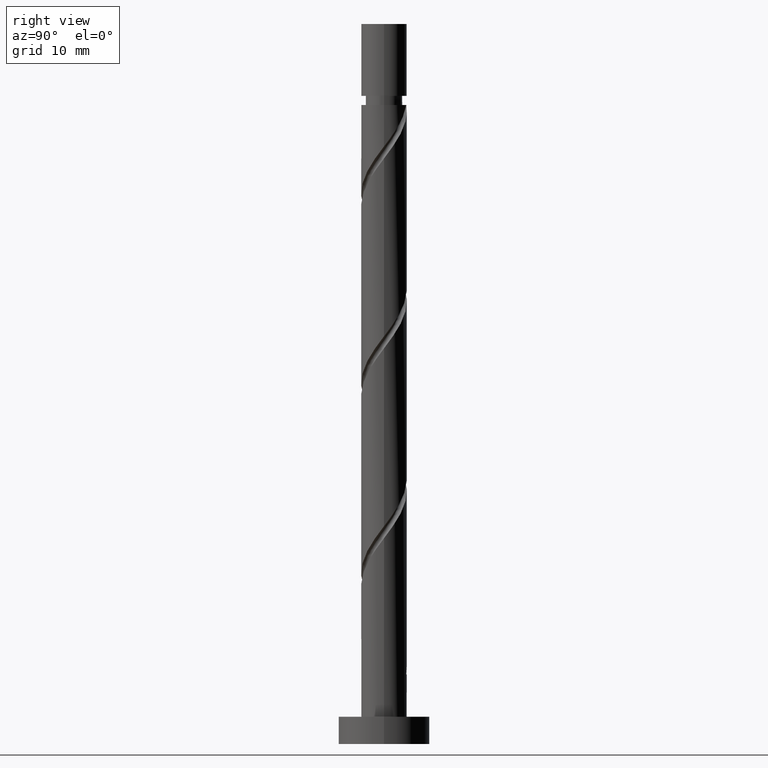
[diagram: clean part render]
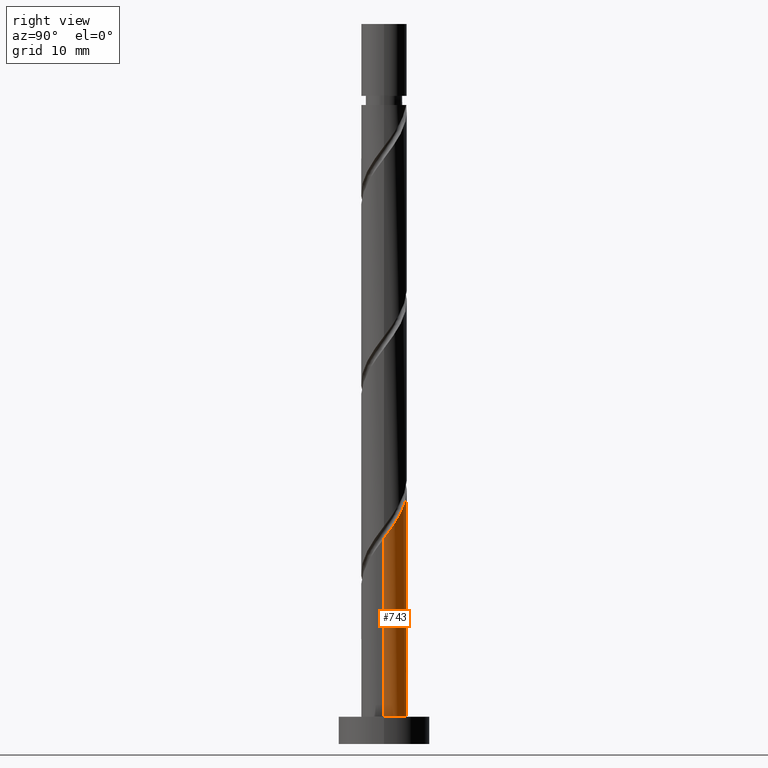
[diagram: same view with one face highlighted and labeled with its STEP entity id]
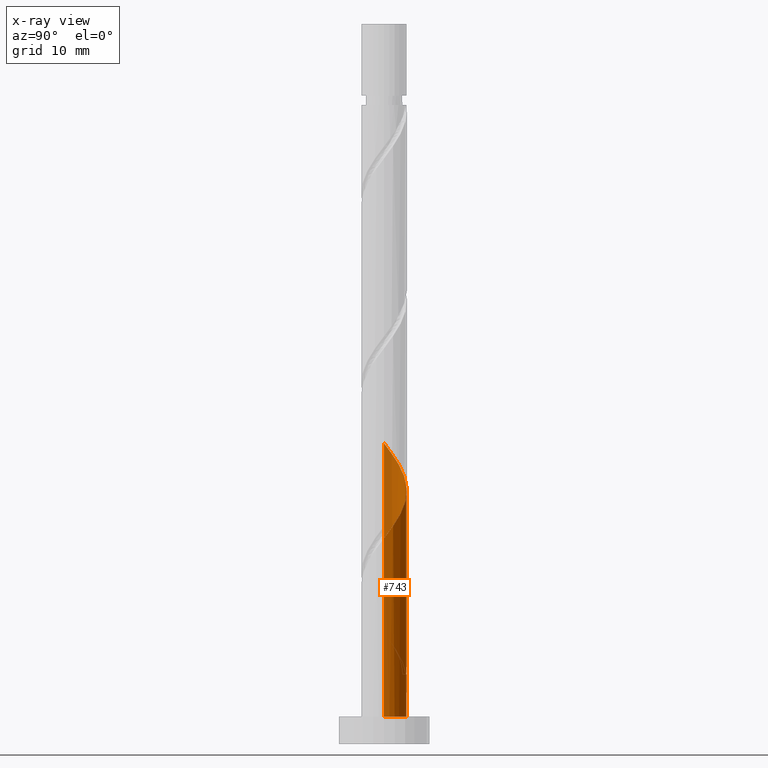
[diagram: x-ray of the same camera — body ghosted, the highlighted face saturated]
A machine part, right view. The second image highlights one B-rep face of the part: STEP entity #743.
The next image is the same camera in x-ray: the body ghosted, the highlighted face saturated — about 0% of this face is hidden behind the body in this view.
In plain terms, the highlighted cylindrical surface (edge-blend (fillet) strip) has radius 2.5 mm, axis along (-0, -0, -1).
Its self-contained STEP definition (entity closure, byte-faithful):
#25 = DIRECTION ( 'NONE',  ( 0.000000000000000000, 0.000000000000000000, 1.000000000000000000 ) ) ;
#53 = CARTESIAN_POINT ( 'NONE',  ( 0.1094518397581949187, 2.528795264178037350, 8.135411662879050709 ) ) ;
#71 = CARTESIAN_POINT ( 'NONE',  ( -1.689672165344844101, 1.842554741020973719, 10.73957832954572567 ) ) ;
#75 = CARTESIAN_POINT ( 'NONE',  ( 2.500000000000003997, 6.746896252442628833E-16, 22.57477588807545743 ) ) ;
#82 = CARTESIAN_POINT ( 'NONE',  ( 0.2839469933725912165, 2.483822478550889556, 27.40624499621238641 ) ) ;
#91 = CARTESIAN_POINT ( 'NONE',  ( -2.274511107092401119, 1.037592995212147429, 31.57291166287905071 ) ) ;
#102 = DIRECTION ( 'NONE',  ( 0.000000000000000000, -0.000000000000000000, -1.000000000000000000 ) ) ;
#112 = CARTESIAN_POINT ( 'NONE',  ( -2.274511107092401119, 1.037592995212147429, 10.73957832954572567 ) ) ;
#118 = CARTESIAN_POINT ( 'NONE',  ( -2.483822478550889112, 0.2839469933725906614, 32.61457832954572211 ) ) ;
#158 = CARTESIAN_POINT ( 'NONE',  ( 0.000000000000000000, 0.000000000000000000, 3.000000000000000000 ) ) ;
#180 = ORIENTED_EDGE ( 'NONE', *, *, #1096, .F. ) ;
#214 = CARTESIAN_POINT ( 'NONE',  ( 1.397840163920919254, 2.110172521261066247, 25.84374499621238641 ) ) ;
#224 = DIRECTION ( 'NONE',  ( -0.000000000000000000, -0.000000000000000000, -1.000000000000000000 ) ) ;
#233 = CARTESIAN_POINT ( 'NONE',  ( -2.438849692923736878, 0.6773458265033759362, 11.26041166287905426 ) ) ;
#240 = CARTESIAN_POINT ( 'NONE',  ( 1.689672165344847432, 1.842554741020975273, 25.32291166287905426 ) ) ;
#246 = CARTESIAN_POINT ( 'NONE',  ( 2.500000000000004441, 0.2512594538148026913, 22.90908046348329918 ) ) ;
#266 = CARTESIAN_POINT ( 'NONE',  ( -2.499999999999999556, 1.664234408935859595E-15, 13.48771410434931894 ) ) ;
#292 = EDGE_CURVE ( 'NONE', #1431, #1016, #310, .T. ) ;
#305 = CARTESIAN_POINT ( 'NONE',  ( 0.4974937185533095385, 2.450000000000000622, 7.614578329545722113 ) ) ;
#310 = LINE ( 'NONE', #943, #901 ) ;
#338 = CARTESIAN_POINT ( 'NONE',  ( 1.981504166768775610, 1.574936960780884743, 24.80207832954572567 ) ) ;
#349 = CARTESIAN_POINT ( 'NONE',  ( -1.574936960780884743, 1.981504166768775166, 9.177078329545725666 ) ) ;
#377 = DIRECTION ( 'NONE',  ( -0.000000000000000000, -0.000000000000000000, -1.000000000000000000 ) ) ;
#378 = FACE_OUTER_BOUND ( 'NONE', #1321, .T. ) ;
#396 = CARTESIAN_POINT ( 'NONE',  ( -2.500000000000003553, -1.004537886474791373E-15, 12.15810922140879491 ) ) ;
#420 = AXIS2_PLACEMENT_3D ( 'NONE', #1212, #224, #966 ) ;
#438 = CARTESIAN_POINT ( 'NONE',  ( -0.4974937185533086503, 2.450000000000004619, 7.614578329545721225 ) ) ;
#453 = VERTEX_POINT ( 'NONE', #1061 ) ;
#467 = CARTESIAN_POINT ( 'NONE',  ( 0.6773458265033764913, 2.438849692923736878, 26.88541166287905071 ) ) ;
#468 = CYLINDRICAL_SURFACE ( 'NONE', #420, 2.500000000000000000 ) ;
#470 = ORIENTED_EDGE ( 'NONE', *, *, #1026, .F. ) ;
#484 = CARTESIAN_POINT ( 'NONE',  ( -2.438849692923736878, 0.6773458265033759362, 32.09374499621240062 ) ) ;
#485 = CARTESIAN_POINT ( 'NONE',  ( -0.4974937185533086503, 2.450000000000004619, 7.614578329545721225 ) ) ;
#526 = CARTESIAN_POINT ( 'NONE',  ( -1.397840163920916368, 2.110172521261063583, 10.21874499621238463 ) ) ;
#537 =( BOUNDED_CURVE ( )  B_SPLINE_CURVE ( 2, ( #889, #1486, #800, #678, #767, #1015, #71, #526, #1126, #1159, #1142, #53, #305 ),
 .UNSPECIFIED., .F., .T. ) 
 B_SPLINE_CURVE_WITH_KNOTS ( ( 3, 2, 2, 2, 2, 2, 3 ),
 ( 0.9295322023138552492, 0.9375000000000000000, 0.9499999999999999556, 0.9625000000000000222, 0.9749999999999999778, 0.9875000000000000444, 1.000000000000000000 ),
 .UNSPECIFIED. ) 
 CURVE ( )  GEOMETRIC_REPRESENTATION_ITEM ( )  RATIONAL_B_SPLINE_CURVE ( ( 0.9039174447099267429, 0.9019565955404561519, 0.9090909090909043977, 0.8978984914501206838, 0.9090909090909043977, 0.8978984914501206838, 0.9090909090909043977, 0.8978984914501206838, 0.9090909090909043977, 0.8978984914501206838, 0.9090909090909043977, 0.8978984914501206838, 0.9090909090909043977 ) ) 
 REPRESENTATION_ITEM ( '' )  );
#549 = AXIS2_PLACEMENT_3D ( 'NONE', #158, #25, #642 ) ;
#560 = VERTEX_POINT ( 'NONE', #619 ) ;
#571 = CARTESIAN_POINT ( 'NONE',  ( 2.371204735821966114, 0.8855355973484234644, 23.76041166287904716 ) ) ;
#577 = CIRCLE ( 'NONE', #549, 2.500000000000000000 ) ;
#583 = CARTESIAN_POINT ( 'NONE',  ( -2.500000000000003997, 0.1424343436160810383, 32.80193146553485661 ) ) ;
#590 = DIRECTION ( 'NONE',  ( -1.000000000000000000, 0.000000000000000000, 0.000000000000000000 ) ) ;
#619 = CARTESIAN_POINT ( 'NONE',  ( 2.500000000000000000, 3.061616997868383141E-16, 3.000000000000000000 ) ) ;
#634 = CARTESIAN_POINT ( 'NONE',  ( 2.500000000000000000, 3.061616997868383141E-16, 79.00000000000000000 ) ) ;
#642 = DIRECTION ( 'NONE',  ( 1.000000000000000000, 0.000000000000000000, 0.000000000000000000 ) ) ;
#653 = EDGE_CURVE ( 'NONE', #1532, #1431, #1245, .T. ) ;
#678 = CARTESIAN_POINT ( 'NONE',  ( -2.371204735821962561, 0.8855355973484230203, 12.30207832954572389 ) ) ;
#688 = ORIENTED_EDGE ( 'NONE', *, *, #292, .F. ) ;
#698 = CARTESIAN_POINT ( 'NONE',  ( -0.1094518397581940028, 2.528795264178042679, 27.92707832954572567 ) ) ;
#731 = VECTOR ( 'NONE', #377, 1000.000000000000000 ) ;
#743 = ADVANCED_FACE ( 'NONE', ( #378 ), #468, .T. ) ;
#767 = CARTESIAN_POINT ( 'NONE',  ( -2.176354451295367198, 1.230236279064652605, 11.78124499621238819 ) ) ;
#782 = CARTESIAN_POINT ( 'NONE',  ( -2.500000000000000000, 0.000000000000000000, 79.00000000000000000 ) ) ;
#798 = DIRECTION ( 'NONE',  ( -0.000000000000000000, -0.000000000000000000, -1.000000000000000000 ) ) ;
#800 = CARTESIAN_POINT ( 'NONE',  ( -2.450000000000000622, 0.4974937185533089279, 12.82291166287905426 ) ) ;
#809 = VECTOR ( 'NONE', #1021, 1000.000000000000000 ) ;
#838 = CARTESIAN_POINT ( 'NONE',  ( -1.574936960780884743, 1.981504166768775166, 30.01041166287906492 ) ) ;
#847 = CARTESIAN_POINT ( 'NONE',  ( -2.500000000000003553, 0.1424343436160821486, 11.96859813220151203 ) ) ;
#879 = CIRCLE ( 'NONE', #1129, 2.500000000000000000 ) ;
#889 = CARTESIAN_POINT ( 'NONE',  ( -2.499999999999999556, 1.664234408935859595E-15, 13.48771410434931894 ) ) ;
#890 = EDGE_CURVE ( 'NONE', #560, #1016, #577, .T. ) ;
#901 = VECTOR ( 'NONE', #798, 1000.000000000000000 ) ;
#942 = CARTESIAN_POINT ( 'NONE',  ( -0.4974937185533085393, 2.450000000000004619, 28.44791166287905781 ) ) ;
#943 = CARTESIAN_POINT ( 'NONE',  ( -2.500000000000000000, 0.000000000000000000, 79.00000000000000000 ) ) ;
#960 = CARTESIAN_POINT ( 'NONE',  ( -2.110172521261066692, 1.397840163920918810, 10.21874499621238463 ) ) ;
#966 = DIRECTION ( 'NONE',  ( -1.000000000000000000, 0.000000000000000000, 0.000000000000000000 ) ) ;
#972 = CARTESIAN_POINT ( 'NONE',  ( -0.8855355973484241305, 2.371204735821966114, 8.135411662879052486 ) ) ;
#1015 = CARTESIAN_POINT ( 'NONE',  ( -1.981504166768771391, 1.574936960780882522, 11.26041166287905249 ) ) ;
#1016 = VERTEX_POINT ( 'NONE', #1391 ) ;
#1021 = DIRECTION ( 'NONE',  ( -0.000000000000000000, -0.000000000000000000, -1.000000000000000000 ) ) ;
#1026 = EDGE_CURVE ( 'NONE', #453, #1253, #1381, .T. ) ;
#1034 = VERTEX_POINT ( 'NONE', #1251 ) ;
#1051 = CARTESIAN_POINT ( 'NONE',  ( 1.037592995212147873, 2.274511107092401119, 26.36457832954571856 ) ) ;
#1061 = CARTESIAN_POINT ( 'NONE',  ( -2.500000000000003553, -1.004537886474791373E-15, 32.99144255474212883 ) ) ;
#1066 = CARTESIAN_POINT ( 'NONE',  ( 0.000000000000000000, 0.000000000000000000, 7.614578329545721225 ) ) ;
#1074 = ORIENTED_EDGE ( 'NONE', *, *, #890, .T. ) ;
#1083 =( BOUNDED_CURVE ( )  B_SPLINE_CURVE ( 2, ( #1332, #246, #1085, #571, #1572, #338, #240, #214, #1051, #467, #82, #698, #942, #1537, #1435, #838, #1317, #1450, #91, #484, #118, #583, #1546 ),
 .UNSPECIFIED., .F., .T. ) 
 B_SPLINE_CURVE_WITH_KNOTS ( ( 3, 2, 2, 2, 2, 2, 2, 2, 2, 2, 2, 3 ),
 ( 0.1795322023138552492, 0.1875000000000000000, 0.1999999999999999556, 0.2125000000000000222, 0.2249999999999999778, 0.2375000000000000444, 0.2500000000000000000, 0.2624999999999999556, 0.2750000000000000222, 0.2874999999999999778, 0.3000000000000000444, 0.3045322023138553047 ),
 .UNSPECIFIED. ) 
 CURVE ( )  GEOMETRIC_REPRESENTATION_ITEM ( )  RATIONAL_B_SPLINE_CURVE ( ( 0.9039174447099327381, 0.9019565955404621471, 0.9090909090909106149, 0.8978984914501265679, 0.9090909090909106149, 0.8978984914501265679, 0.9090909090909106149, 0.8978984914501265679, 0.9090909090909106149, 0.8978984914501265679, 0.9090909090909106149, 0.8978984914501265679, 0.9090909090909106149, 0.8978984914501265679, 0.9090909090909106149, 0.8978984914501265679, 0.9090909090909106149, 0.8978984914501265679, 0.9090909090909106149, 0.8978984914501265679, 0.9090909090909106149, 0.9050328050005749247, 0.9039174447099327381 ) ) 
 REPRESENTATION_ITEM ( '' )  );
#1085 = CARTESIAN_POINT ( 'NONE',  ( 2.450000000000004619, 0.4974937185533087614, 23.23957832954571501 ) ) ;
#1096 = EDGE_CURVE ( 'NONE', #1544, #453, #1083, .T. ) ;
#1100 = CARTESIAN_POINT ( 'NONE',  ( -2.500000000000003109, -1.004537886474791373E-15, 12.15810922140879669 ) ) ;
#1106 = LINE ( 'NONE', #634, #731 ) ;
#1126 = CARTESIAN_POINT ( 'NONE',  ( -1.037592995212145430, 2.274511107092398010, 9.697911662879054262 ) ) ;
#1129 = AXIS2_PLACEMENT_3D ( 'NONE', #1066, #102, #590 ) ;
#1142 = CARTESIAN_POINT ( 'NONE',  ( -0.2839469933725897177, 2.483822478550885560, 8.656244996212391740 ) ) ;
#1159 = CARTESIAN_POINT ( 'NONE',  ( -0.6773458265033740489, 2.438849692923733326, 9.177078329545722113 ) ) ;
#1184 = EDGE_CURVE ( 'NONE', #1532, #1034, #879, .T. ) ;
#1197 = CARTESIAN_POINT ( 'NONE',  ( -1.842554741020975939, 1.689672165344847210, 9.697911662879052486 ) ) ;
#1212 = CARTESIAN_POINT ( 'NONE',  ( 0.000000000000000000, 0.000000000000000000, 79.00000000000000000 ) ) ;
#1230 = EDGE_CURVE ( 'NONE', #1544, #560, #1106, .T. ) ;
#1245 =( BOUNDED_CURVE ( )  B_SPLINE_CURVE ( 2, ( #485, #972, #1343, #349, #1197, #960, #112, #233, #1553, #847, #1100 ),
 .UNSPECIFIED., .F., .T. ) 
 B_SPLINE_CURVE_WITH_KNOTS ( ( 3, 2, 2, 2, 2, 3 ),
 ( 0.000000000000000000, 0.01249999999999995559, 0.02500000000000002220, 0.03749999999999997780, 0.05000000000000004441, 0.05453220231385526307 ),
 .UNSPECIFIED. ) 
 CURVE ( )  GEOMETRIC_REPRESENTATION_ITEM ( )  RATIONAL_B_SPLINE_CURVE ( ( 0.9090909090909106149, 0.8978984914501265679, 0.9090909090909106149, 0.8978984914501265679, 0.9090909090909106149, 0.8978984914501265679, 0.9090909090909106149, 0.8978984914501265679, 0.9090909090909106149, 0.9050328050005750358, 0.9039174447099329601 ) ) 
 REPRESENTATION_ITEM ( '' )  );
#1251 = CARTESIAN_POINT ( 'NONE',  ( 0.4974937185533095385, 2.450000000000000622, 7.614578329545721225 ) ) ;
#1253 = VERTEX_POINT ( 'NONE', #266 ) ;
#1317 = CARTESIAN_POINT ( 'NONE',  ( -1.842554741020975939, 1.689672165344847210, 30.53124499621238996 ) ) ;
#1321 = EDGE_LOOP ( 'NONE', ( #180, #1433, #1074, #688, #1407, #1422, #1525, #470 ) ) ;
#1332 = CARTESIAN_POINT ( 'NONE',  ( 2.500000000000003997, 6.746896252442628833E-16, 22.57477588807545743 ) ) ;
#1343 = CARTESIAN_POINT ( 'NONE',  ( -1.230236279064653937, 2.176354451295370751, 8.656244996212389964 ) ) ;
#1380 = EDGE_CURVE ( 'NONE', #1253, #1034, #537, .T. ) ;
#1381 = LINE ( 'NONE', #782, #809 ) ;
#1391 = CARTESIAN_POINT ( 'NONE',  ( -2.500000000000000000, 0.000000000000000000, 3.000000000000000000 ) ) ;
#1407 = ORIENTED_EDGE ( 'NONE', *, *, #653, .F. ) ;
#1422 = ORIENTED_EDGE ( 'NONE', *, *, #1184, .T. ) ;
#1431 = VERTEX_POINT ( 'NONE', #396 ) ;
#1433 = ORIENTED_EDGE ( 'NONE', *, *, #1230, .T. ) ;
#1435 = CARTESIAN_POINT ( 'NONE',  ( -1.230236279064653937, 2.176354451295370751, 29.48957832954571501 ) ) ;
#1450 = CARTESIAN_POINT ( 'NONE',  ( -2.110172521261066692, 1.397840163920918810, 31.05207832954572567 ) ) ;
#1486 = CARTESIAN_POINT ( 'NONE',  ( -2.499999999999998668, 0.2512594538148032464, 13.15340952894147897 ) ) ;
#1525 = ORIENTED_EDGE ( 'NONE', *, *, #1380, .F. ) ;
#1532 = VERTEX_POINT ( 'NONE', #438 ) ;
#1537 = CARTESIAN_POINT ( 'NONE',  ( -0.8855355973484241305, 2.371204735821966114, 28.96874499621239352 ) ) ;
#1544 = VERTEX_POINT ( 'NONE', #75 ) ;
#1546 = CARTESIAN_POINT ( 'NONE',  ( -2.500000000000003553, -1.004537886474791373E-15, 32.99144255474212883 ) ) ;
#1553 = CARTESIAN_POINT ( 'NONE',  ( -2.483822478550889112, 0.2839469933725906614, 11.78124499621238463 ) ) ;
#1572 = CARTESIAN_POINT ( 'NONE',  ( 2.176354451295371195, 1.230236279064653715, 24.28124499621238641 ) ) ;